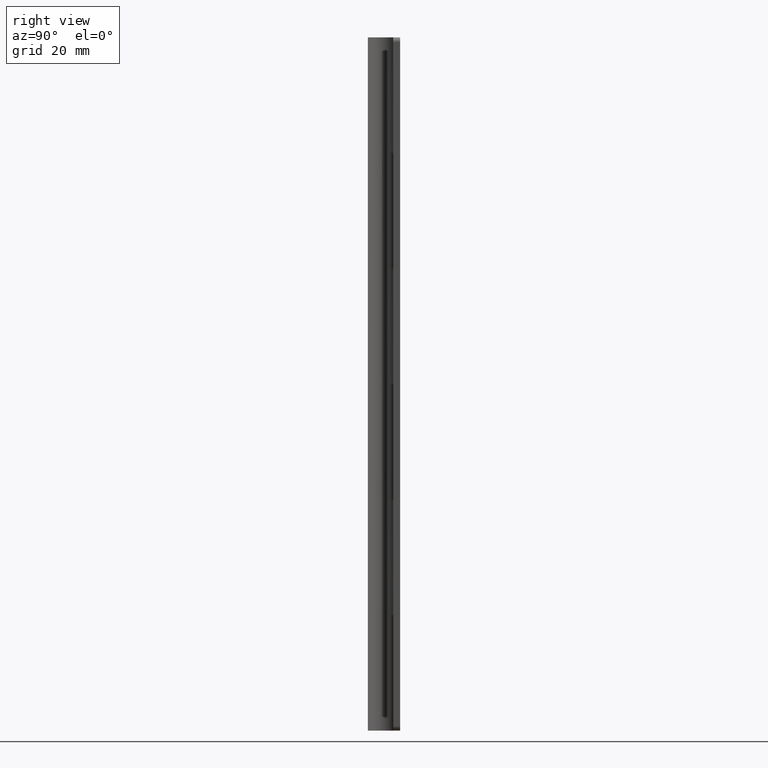
[diagram: clean part render]
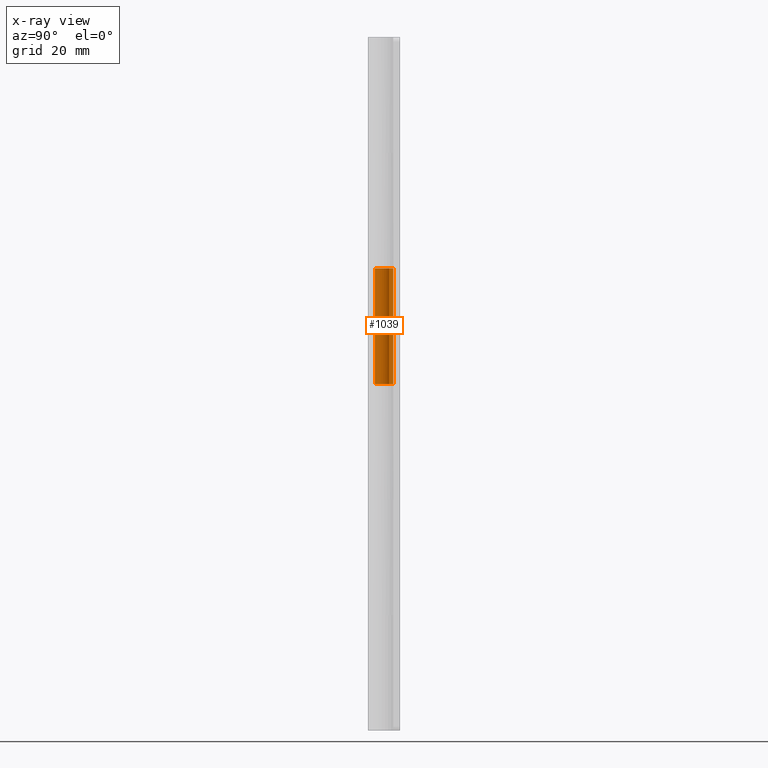
[diagram: x-ray — body ghosted, one internal face saturated and labeled with its STEP entity id]
A machine part, right view, then the same camera in x-ray: the body is ghosted and one INTERNAL B-rep face — a face not visible from any outside direction — is saturated and labeled: STEP entity #1039.
In plain terms, the highlighted face is a freeform B-spline surface patch.
Its self-contained STEP definition (entity closure, byte-faithful):
#300=CARTESIAN_POINT('',(1.660833329066705,1.114285714285708,100.0));
#301=VERTEX_POINT('',#300);
#307=CARTESIAN_POINT('',(-2.449213E-016,2.0,100.0));
#308=VERTEX_POINT('',#307);
#309=CARTESIAN_POINT('',(0.0,2.0,100.0));
#310=CARTESIAN_POINT('',(-1.561576765982737,2.0,100.0));
#311=CARTESIAN_POINT('',(-1.940292218542123,0.485042376153762,100.0));
#312=CARTESIAN_POINT('',(-2.319007671101510,-1.029915247692478,100.0));
#313=CARTESIAN_POINT('',(-0.941123948114325,-1.764733893335113,100.0));
#314=CARTESIAN_POINT('',(0.436759774872860,-2.499552538977749,100.0));
#315=CARTESIAN_POINT('',(1.483807222493542,-1.341013097056103,100.0));
#316=CARTESIAN_POINT('',(2.530854670114223,-0.182473655134458,100.0));
#317=CARTESIAN_POINT('',(1.660833329066705,1.114285714285706,100.0));
#325=(BOUNDED_CURVE()B_SPLINE_CURVE(2,(#309,#310,#311,#312,#313,#314,#315,#316,#317),.UNSPECIFIED.,.F.,.U.)B_SPLINE_CURVE_WITH_KNOTS((3,2,2,2,3),(0.0,0.250000000000000,0.500000000000000,0.750000000000000,1.0),.UNSPECIFIED.)CURVE()GEOMETRIC_REPRESENTATION_ITEM()RATIONAL_B_SPLINE_CURVE((1.0,0.788200858942973,1.0,0.788200858942973,1.0,0.788200858942973,1.0,0.788200858942973,1.0))REPRESENTATION_ITEM(''));
#326=EDGE_CURVE('',#308,#301,#325,.T.);
#384=CARTESIAN_POINT('',(-2.449213E-016,2.0,75.0));
#385=VERTEX_POINT('',#384);
#391=CARTESIAN_POINT('',(1.660833329066705,1.114285714285708,75.0));
#392=VERTEX_POINT('',#391);
#393=CARTESIAN_POINT('',(1.660833329066704,1.114285714285707,75.0));
#394=CARTESIAN_POINT('',(2.530854670114223,-0.182473655134455,75.0));
#395=CARTESIAN_POINT('',(1.483807222493543,-1.341013097056102,75.0));
#396=CARTESIAN_POINT('',(0.436759774872861,-2.499552538977749,75.0));
#397=CARTESIAN_POINT('',(-0.941123948114324,-1.764733893335114,75.0));
#398=CARTESIAN_POINT('',(-2.319007671101509,-1.029915247692478,75.0));
#399=CARTESIAN_POINT('',(-1.940292218542123,0.485042376153761,75.0));
#400=CARTESIAN_POINT('',(-1.561576765982737,2.000000000000000,75.0));
#401=CARTESIAN_POINT('',(0.0,2.0,75.0));
#409=(BOUNDED_CURVE()B_SPLINE_CURVE(2,(#393,#394,#395,#396,#397,#398,#399,#400,#401),.UNSPECIFIED.,.F.,.U.)B_SPLINE_CURVE_WITH_KNOTS((3,2,2,2,3),(0.0,0.250000000000000,0.500000000000000,0.750000000000000,1.0),.UNSPECIFIED.)CURVE()GEOMETRIC_REPRESENTATION_ITEM()RATIONAL_B_SPLINE_CURVE((1.0,0.788200858942973,1.0,0.788200858942973,1.0,0.788200858942973,1.0,0.788200858942973,1.0))REPRESENTATION_ITEM(''));
#410=EDGE_CURVE('',#392,#385,#409,.T.);
#838=CARTESIAN_POINT('',(-2.449213E-016,2.0,100.0));
#839=CARTESIAN_POINT('',(-2.449213E-016,2.0,75.0));
#840=QUASI_UNIFORM_CURVE('',1,(#838,#839),.UNSPECIFIED.,.F.,.U.);
#841=EDGE_CURVE('',#308,#385,#840,.T.);
#974=CARTESIAN_POINT('',(1.660833329066705,1.114285714285708,100.0));
#975=CARTESIAN_POINT('',(1.660833329066705,1.114285714285708,75.0));
#976=QUASI_UNIFORM_CURVE('',1,(#974,#975),.UNSPECIFIED.,.F.,.U.);
#977=EDGE_CURVE('',#301,#392,#976,.T.);
#1011=CARTESIAN_POINT('',(0.052353896615749,1.999314649951114,100.625000000000000));
#1012=CARTESIAN_POINT('',(0.052353896615749,1.999314649951114,74.359374999999986));
#1013=CARTESIAN_POINT('',(-2.446176245649102,2.064740964294713,100.625000000000010));
#1014=CARTESIAN_POINT('',(-2.446176245649102,2.064740964294713,74.359374999999986));
#1015=CARTESIAN_POINT('',(-1.962135980597785,-0.387327243611349,100.625000000000000));
#1016=CARTESIAN_POINT('',(-1.962135980597785,-0.387327243611349,74.359374999999986));
#1017=CARTESIAN_POINT('',(-1.478095715546469,-2.839395451517414,100.625000000000010));
#1018=CARTESIAN_POINT('',(-1.478095715546469,-2.839395451517414,74.359374999999986));
#1019=CARTESIAN_POINT('',(0.808155059974381,-1.829449479771935,100.625000000000000));
#1020=CARTESIAN_POINT('',(0.808155059974381,-1.829449479771935,74.359374999999986));
#1021=CARTESIAN_POINT('',(3.094405835495230,-0.819503508026457,100.625000000000010));
#1022=CARTESIAN_POINT('',(3.094405835495230,-0.819503508026457,74.359374999999986));
#1023=CARTESIAN_POINT('',(1.607713721234436,1.189645573502680,100.625000000000000));
#1024=CARTESIAN_POINT('',(1.607713721234436,1.189645573502680,74.359374999999986));
#1032=(BOUNDED_SURFACE()B_SPLINE_SURFACE(1,2,((#1011,#1013,#1015,#1017,#1019,#1021,#1023),(#1012,#1014,#1016,#1018,#1020,#1022,#1024)),.UNSPECIFIED.,.F.,.F.,.U.)B_SPLINE_SURFACE_WITH_KNOTS((2,2),(3,2,2,3),(0.0,26.265625000000028),(0.0,3.844409384667811,7.688818769335621,11.533228154003430),.UNSPECIFIED.)GEOMETRIC_REPRESENTATION_ITEM()RATIONAL_B_SPLINE_SURFACE(((1.0,0.624788514543960,1.0,0.624788514543960,1.0,0.624788514543960,1.0),(1.0,0.624788514543960,1.0,0.624788514543960,1.0,0.624788514543960,1.0)))REPRESENTATION_ITEM('')SURFACE());
#1033=ORIENTED_EDGE('',*,*,#841,.F.);
#1034=ORIENTED_EDGE('',*,*,#326,.T.);
#1035=ORIENTED_EDGE('',*,*,#977,.T.);
#1036=ORIENTED_EDGE('',*,*,#410,.T.);
#1037=EDGE_LOOP('',(#1033,#1034,#1035,#1036));
#1038=FACE_OUTER_BOUND('',#1037,.T.);
#1039=ADVANCED_FACE('',(#1038),#1032,.F.);